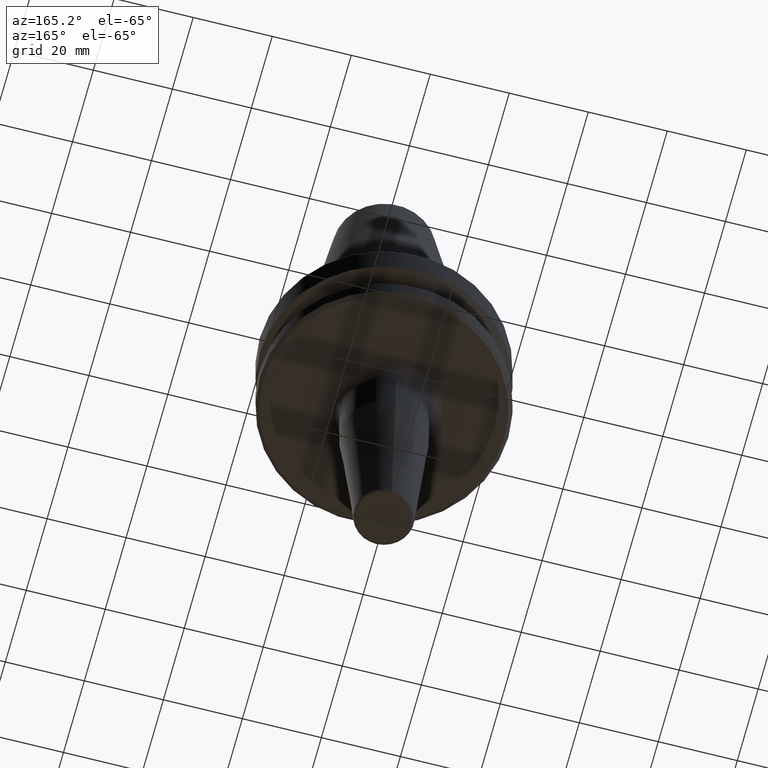
[diagram: clean part render]
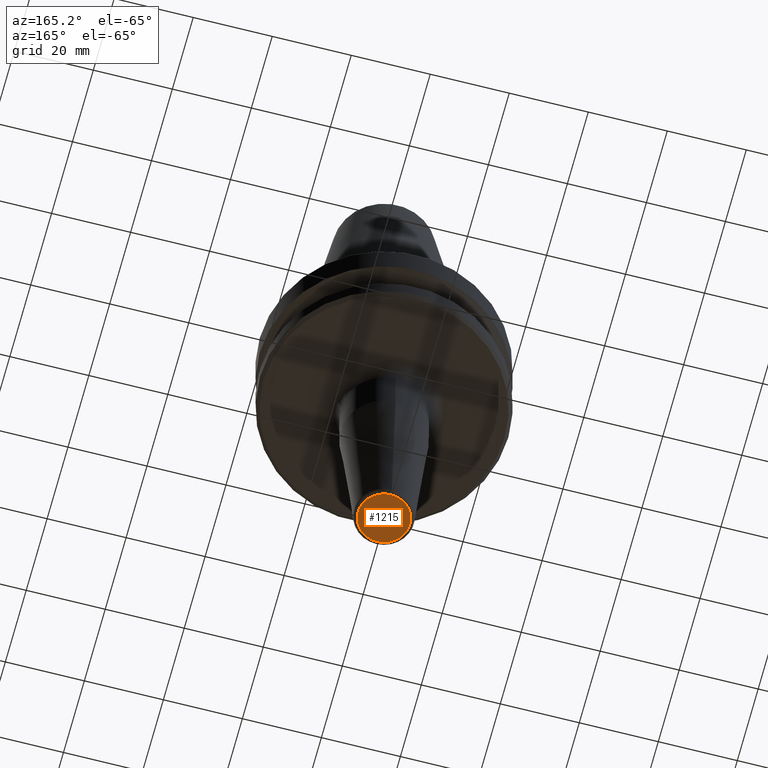
[diagram: same view with one face highlighted and labeled with its STEP entity id]
A machine part, auxiliary view. The second image highlights one B-rep face of the part: STEP entity #1215.
In plain terms, the highlighted planar face has unit normal (0, -0, 1).
Its self-contained STEP definition (entity closure, byte-faithful):
#117 = EDGE_LOOP ( 'NONE', ( #358, #1158 ) ) ;
#140 = CARTESIAN_POINT ( 'NONE',  ( 0.0000000000000000000, 1.021145699976149000E-030, -90.00000000000000000 ) ) ;
#163 = FACE_OUTER_BOUND ( 'NONE', #117, .T. ) ;
#170 = CARTESIAN_POINT ( 'NONE',  ( 0.0000000000000000000, 6.575609508341830900, -90.00000000000000000 ) ) ;
#192 = CARTESIAN_POINT ( 'NONE',  ( 0.0000000000000000000, 3.511004582800035900E-014, -90.00000000000000000 ) ) ;
#290 = DIRECTION ( 'NONE',  ( 0.0000000000000000000, 1.000000000000000000, 0.0000000000000000000 ) ) ;
#342 = CIRCLE ( 'NONE', #633, 6.575609508341796200 ) ;
#358 = ORIENTED_EDGE ( 'NONE', *, *, #589, .T. ) ;
#440 = DIRECTION ( 'NONE',  ( -0.0000000000000000000, 5.573023147301644900E-016, -1.000000000000000000 ) ) ;
#532 = DIRECTION ( 'NONE',  ( 0.0000000000000000000, -5.573023147301645900E-016, 1.000000000000000000 ) ) ;
#542 = VERTEX_POINT ( 'NONE', #980 ) ;
#589 = EDGE_CURVE ( 'NONE', #1118, #542, #758, .T. ) ;
#633 = AXIS2_PLACEMENT_3D ( 'NONE', #1027, #440, #1129 ) ;
#758 = CIRCLE ( 'NONE', #1200, 6.575609508341796200 ) ;
#872 = AXIS2_PLACEMENT_3D ( 'NONE', #140, #532, #1227 ) ;
#875 = DIRECTION ( 'NONE',  ( -0.0000000000000000000, 5.573023147301644900E-016, -1.000000000000000000 ) ) ;
#932 = PLANE ( 'NONE',  #872 ) ;
#980 = CARTESIAN_POINT ( 'NONE',  ( 8.663234947719077800E-016, -6.575609508341761600, -90.00000000000000000 ) ) ;
#1027 = CARTESIAN_POINT ( 'NONE',  ( 0.0000000000000000000, 3.511004582800035900E-014, -90.00000000000000000 ) ) ;
#1118 = VERTEX_POINT ( 'NONE', #170 ) ;
#1129 = DIRECTION ( 'NONE',  ( 0.0000000000000000000, 1.000000000000000000, 0.0000000000000000000 ) ) ;
#1158 = ORIENTED_EDGE ( 'NONE', *, *, #1214, .T. ) ;
#1200 = AXIS2_PLACEMENT_3D ( 'NONE', #192, #875, #290 ) ;
#1214 = EDGE_CURVE ( 'NONE', #542, #1118, #342, .T. ) ;
#1215 = ADVANCED_FACE ( 'NONE', ( #163 ), #932, .F. ) ;
#1227 = DIRECTION ( 'NONE',  ( 0.0000000000000000000, -1.000000000000000000, -5.573023147301645900E-016 ) ) ;